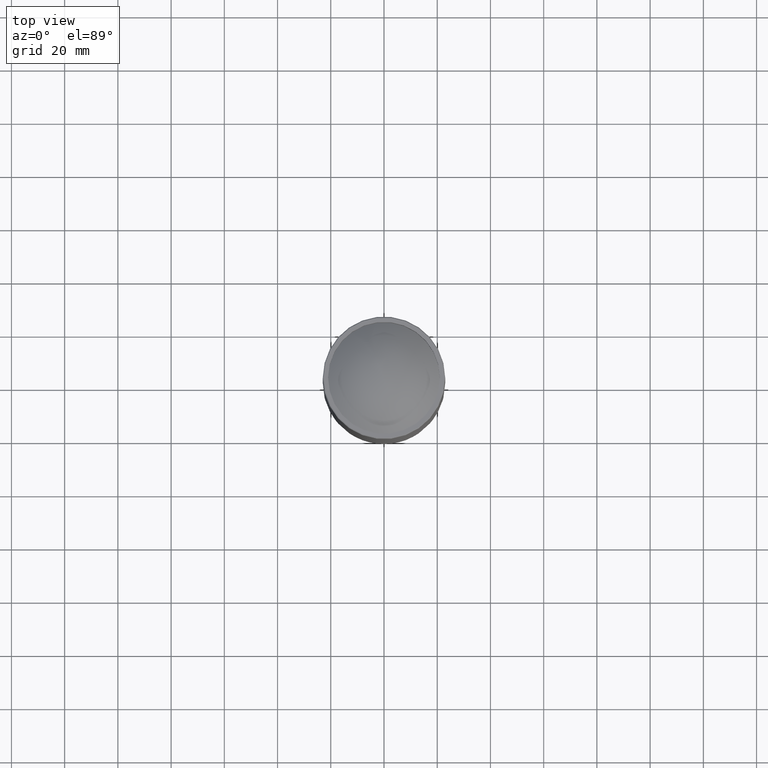
[diagram: clean part render]
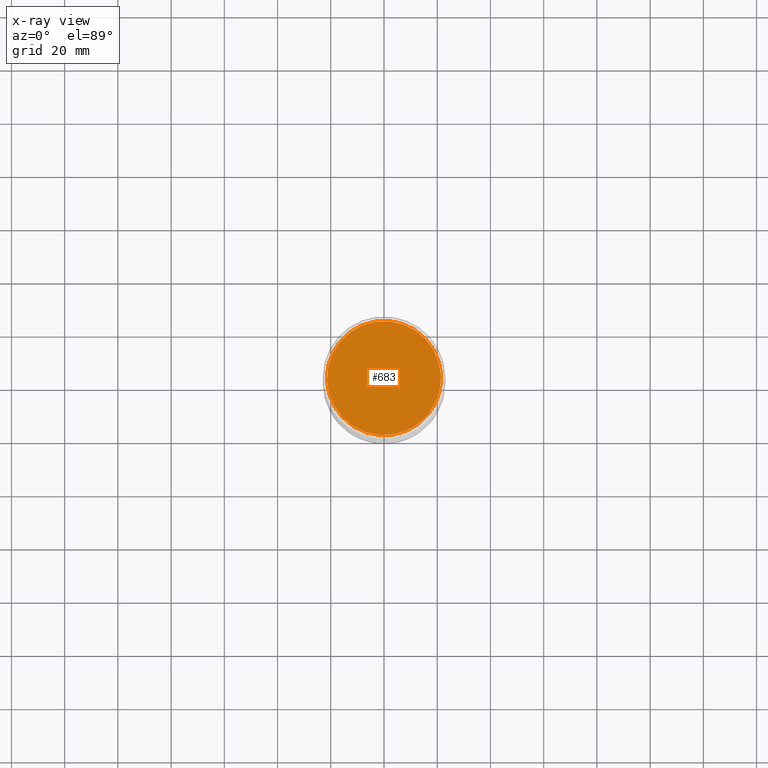
[diagram: x-ray — body ghosted, one internal face saturated and labeled with its STEP entity id]
A machine part, top view, then the same camera in x-ray: the body is ghosted and one INTERNAL B-rep face — a face not visible from any outside direction — is saturated and labeled: STEP entity #683.
In plain terms, the highlighted planar face has unit normal (-0, 0, 1).
Its self-contained STEP definition (entity closure, byte-faithful):
#13 = AXIS2_PLACEMENT_3D ( 'NONE', #850, #61, #581 ) ;
#61 = DIRECTION ( 'NONE',  ( -1.848892746611746419E-32, 1.318609258053556101E-16, 1.000000000000000000 ) ) ;
#62 = AXIS2_PLACEMENT_3D ( 'NONE', #389, #582, #331 ) ;
#243 = CARTESIAN_POINT ( 'NONE',  ( 8.217209483082314136, -19.81591518845252864, -391.0000000000000000 ) ) ;
#331 = DIRECTION ( 'NONE',  ( 0.3830490080632378835, -0.9237280213470682178, 0.000000000000000000 ) ) ;
#339 = EDGE_CURVE ( 'NONE', #1024, #1024, #961, .T. ) ;
#389 = CARTESIAN_POINT ( 'NONE',  ( 0.000000000000000000, -1.734723475976807094E-15, -391.0000000000000000 ) ) ;
#581 = DIRECTION ( 'NONE',  ( 0.3830490080632378835, -0.9237280213470681067, 1.218036320871736945E-16 ) ) ;
#582 = DIRECTION ( 'NONE',  ( -1.232595164407830946E-32, -1.318609258053555361E-16, -1.000000000000000000 ) ) ;
#683 = ADVANCED_FACE ( 'NONE', ( #1123 ), #755, .F. ) ;
#755 = PLANE ( 'NONE',  #13 ) ;
#761 = EDGE_LOOP ( 'NONE', ( #964 ) ) ;
#850 = CARTESIAN_POINT ( 'NONE',  ( -7.311375404722625149, -63.84507486142587851, -391.0000000000000000 ) ) ;
#961 = CIRCLE ( 'NONE', #62, 21.45211006975307910 ) ;
#964 = ORIENTED_EDGE ( 'NONE', *, *, #339, .T. ) ;
#1024 = VERTEX_POINT ( 'NONE', #243 ) ;
#1123 = FACE_OUTER_BOUND ( 'NONE', #761, .T. ) ;